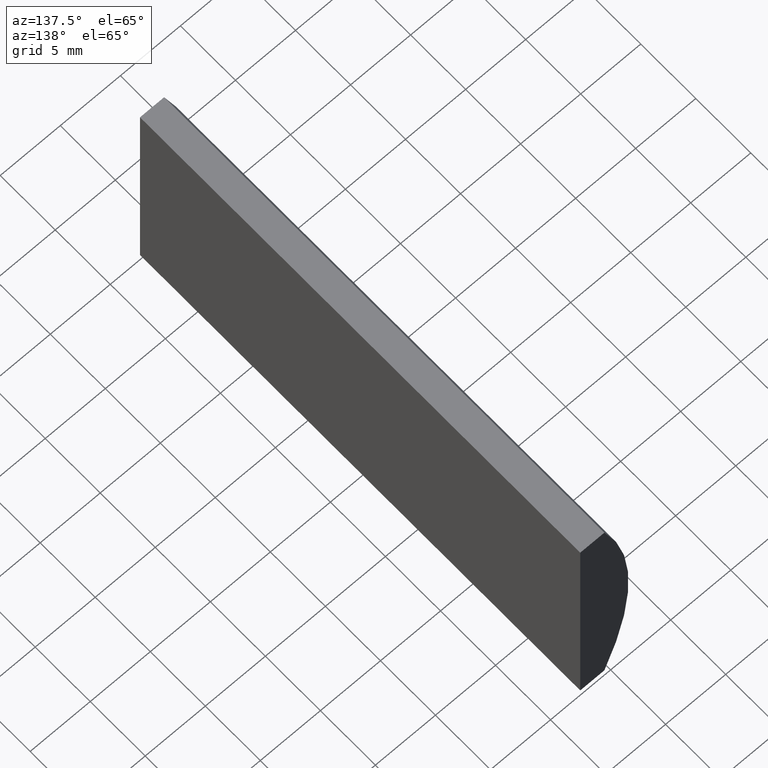
[diagram: clean part render]
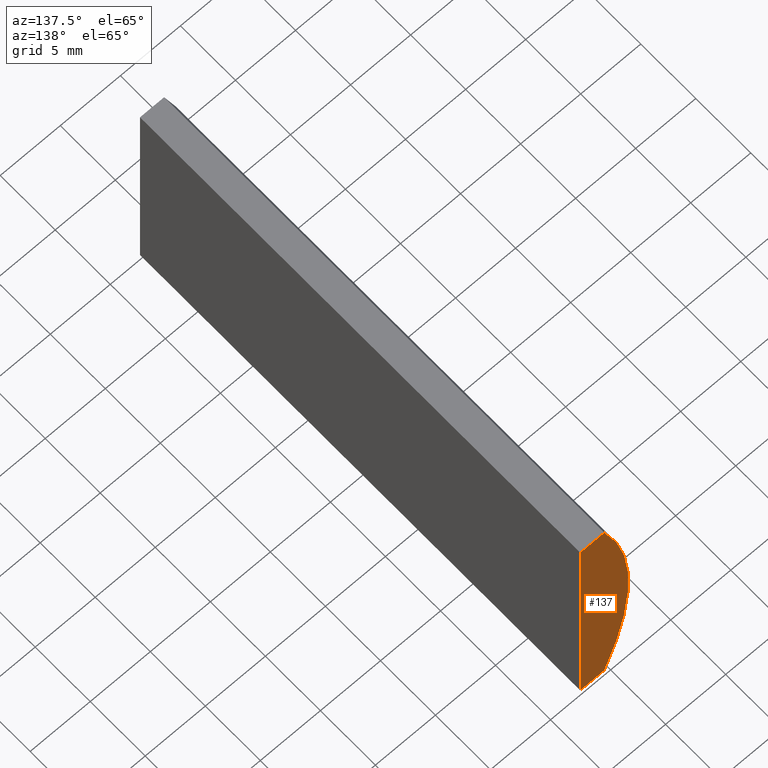
[diagram: same view with one face highlighted and labeled with its STEP entity id]
A machine part, auxiliary view. The second image highlights one B-rep face of the part: STEP entity #137.
In plain terms, the highlighted planar face has unit normal (0, 1, 0).
Its self-contained STEP definition (entity closure, byte-faithful):
#6 = VERTEX_POINT ( 'NONE', #73 ) ;
#11 = CARTESIAN_POINT ( 'NONE',  ( -17.47479566514874000, 40.00000000000000000, -10.00000000000000000 ) ) ;
#12 = LINE ( 'NONE', #195, #198 ) ;
#20 = VERTEX_POINT ( 'NONE', #11 ) ;
#25 = PLANE ( 'NONE',  #153 ) ;
#30 = CARTESIAN_POINT ( 'NONE',  ( -19.48221373003152100, 40.00000000000000000, 10.00000000000000000 ) ) ;
#32 = ORIENTED_EDGE ( 'NONE', *, *, #105, .T. ) ;
#45 = CIRCLE ( 'NONE', #204, 25.85000000000000500 ) ;
#46 = EDGE_CURVE ( 'NONE', #197, #102, #12, .T. ) ;
#51 = EDGE_CURVE ( 'NONE', #6, #197, #45, .T. ) ;
#53 = CARTESIAN_POINT ( 'NONE',  ( -19.48221373003152100, 40.00000000000000000, -10.00000000000000000 ) ) ;
#54 = CARTESIAN_POINT ( 'NONE',  ( -17.47479566514874000, 40.00000000000000000, -10.00000000000000000 ) ) ;
#55 = DIRECTION ( 'NONE',  ( 0.0000000000000000000, 0.0000000000000000000, 1.000000000000000000 ) ) ;
#59 = DIRECTION ( 'NONE',  ( -1.000000000000000000, -0.0000000000000000000, -0.0000000000000000000 ) ) ;
#67 = LINE ( 'NONE', #54, #165 ) ;
#73 = CARTESIAN_POINT ( 'NONE',  ( -19.48221373003152100, 40.00000000000000000, -10.00000000000000000 ) ) ;
#79 = EDGE_CURVE ( 'NONE', #20, #6, #136, .T. ) ;
#84 = ORIENTED_EDGE ( 'NONE', *, *, #46, .T. ) ;
#89 = EDGE_LOOP ( 'NONE', ( #193, #84, #32, #199 ) ) ;
#96 = FACE_OUTER_BOUND ( 'NONE', #89, .T. ) ;
#102 = VERTEX_POINT ( 'NONE', #179 ) ;
#105 = EDGE_CURVE ( 'NONE', #102, #20, #67, .T. ) ;
#127 = DIRECTION ( 'NONE',  ( 1.000000000000000000, 0.0000000000000000000, 0.0000000000000000000 ) ) ;
#136 = LINE ( 'NONE', #53, #185 ) ;
#137 = ADVANCED_FACE ( 'NONE', ( #96 ), #25, .T. ) ;
#152 = DIRECTION ( 'NONE',  ( 0.0000000000000000000, 1.000000000000000000, 0.0000000000000000000 ) ) ;
#153 = AXIS2_PLACEMENT_3D ( 'NONE', #159, #152, #155 ) ;
#155 = DIRECTION ( 'NONE',  ( 0.0000000000000000000, -0.0000000000000000000, 1.000000000000000000 ) ) ;
#156 = DIRECTION ( 'NONE',  ( -3.469446951953614200E-016, -0.0000000000000000000, -1.000000000000000000 ) ) ;
#159 = CARTESIAN_POINT ( 'NONE',  ( 4.355204334851265500, 40.00000000000000000, 4.286263797015675000E-017 ) ) ;
#165 = VECTOR ( 'NONE', #156, 1000.000000000000000 ) ;
#170 = DIRECTION ( 'NONE',  ( 0.0000000000000000000, 1.000000000000000000, 0.0000000000000000000 ) ) ;
#179 = CARTESIAN_POINT ( 'NONE',  ( -17.47479566514873300, 40.00000000000000000, 10.00000000000000000 ) ) ;
#185 = VECTOR ( 'NONE', #59, 1000.000000000000000 ) ;
#193 = ORIENTED_EDGE ( 'NONE', *, *, #51, .T. ) ;
#195 = CARTESIAN_POINT ( 'NONE',  ( -19.48221373003152100, 40.00000000000000000, 10.00000000000000000 ) ) ;
#197 = VERTEX_POINT ( 'NONE', #30 ) ;
#198 = VECTOR ( 'NONE', #127, 1000.000000000000000 ) ;
#199 = ORIENTED_EDGE ( 'NONE', *, *, #79, .T. ) ;
#203 = CARTESIAN_POINT ( 'NONE',  ( 4.355204334851265500, 40.00000000000000000, 4.286263797015675000E-017 ) ) ;
#204 = AXIS2_PLACEMENT_3D ( 'NONE', #203, #170, #55 ) ;